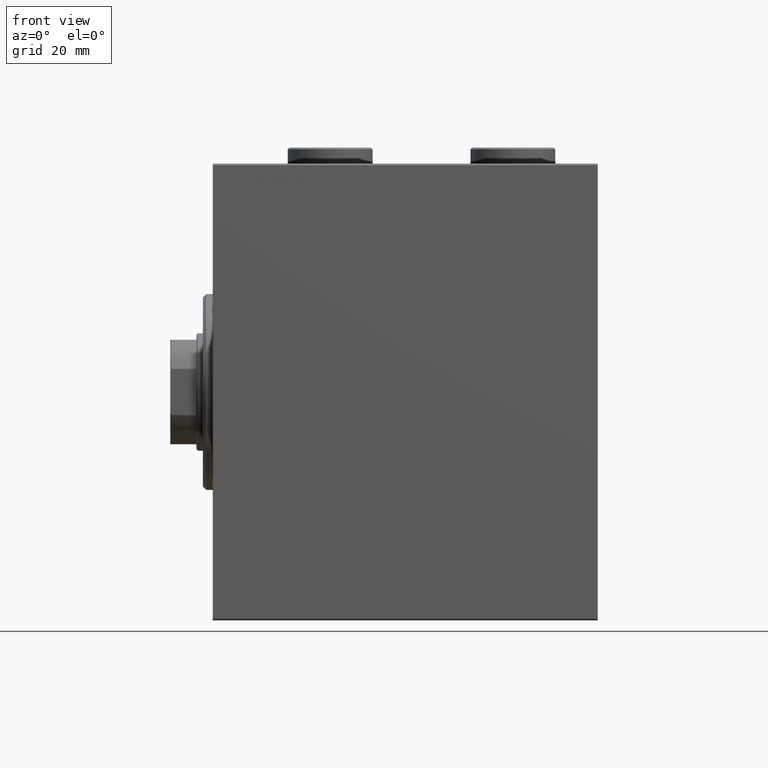
[diagram: clean part render]
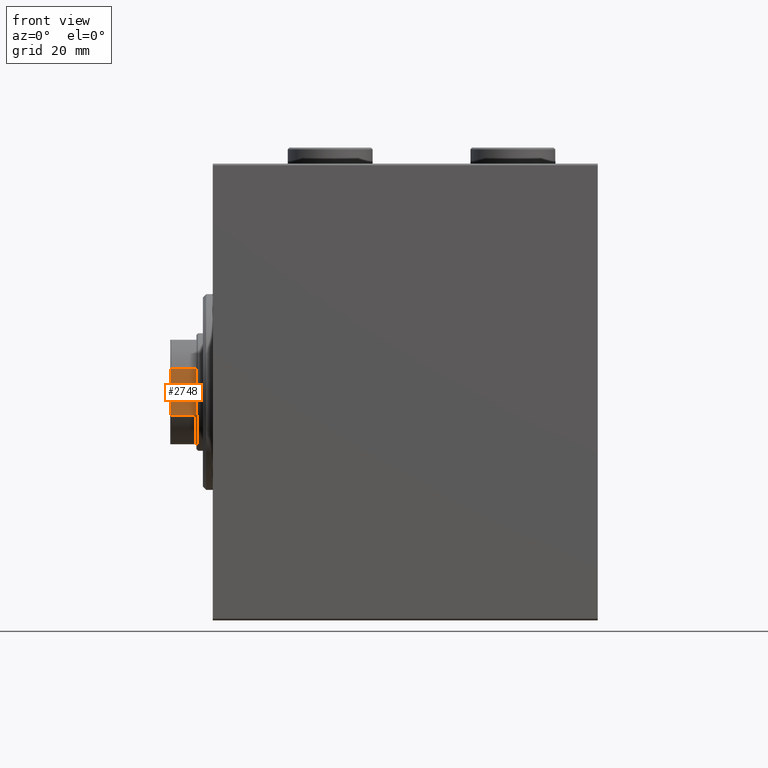
[diagram: same view with one face highlighted and labeled with its STEP entity id]
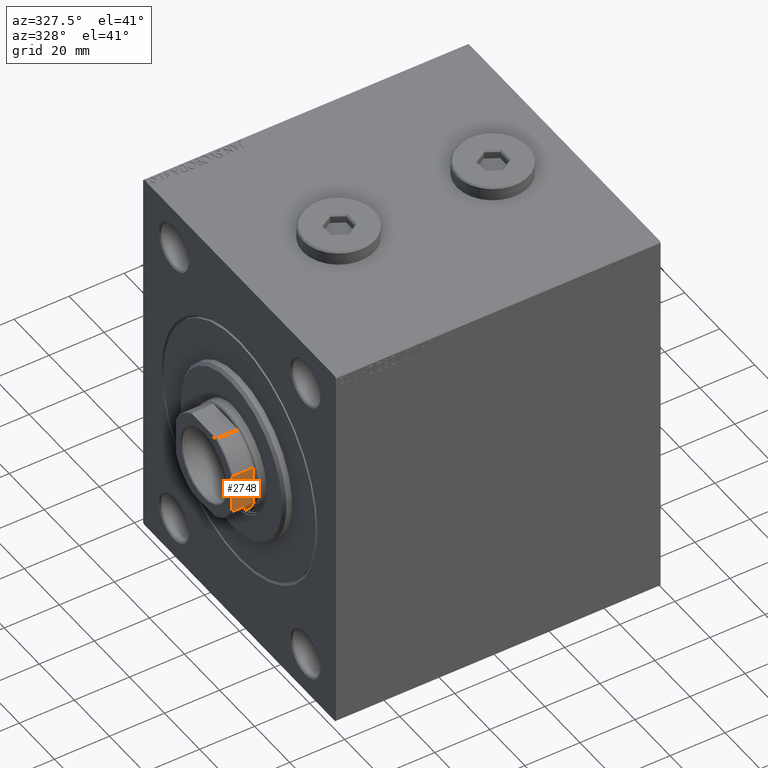
[diagram: same view with one face highlighted and labeled with its STEP entity id]
A machine part, front view. The second image highlights one B-rep face of the part: STEP entity #2748.
A second angle (auxiliary view) of the same face is appended — the face is thin or edge-on in the first view.
In plain terms, the highlighted planar face has unit normal (0, 1, 0).
Its self-contained STEP definition (entity closure, byte-faithful):
#91 = CARTESIAN_POINT ( 'NONE',  ( -7.088723439378916247, -16.00000000000000000, 55.99999999999997868 ) ) ;
#484 = PLANE ( 'NONE',  #8919 ) ;
#818 = VECTOR ( 'NONE', #23744, 1000.000000000000000 ) ;
#1412 = CARTESIAN_POINT ( 'NONE',  ( 7.088723439378916247, -16.00000000000000000, -0.001000000000001000089 ) ) ;
#2120 = EDGE_LOOP ( 'NONE', ( #8819, #24159, #11649, #30242, #22075, #5632 ) ) ;
#2438 = CARTESIAN_POINT ( 'NONE',  ( -6.831413176973287094, -16.00000000000000000, 63.80422864504615887 ) ) ;
#2748 = ADVANCED_FACE ( 'NONE', ( #14966 ), #484, .F. ) ;
#3437 = CARTESIAN_POINT ( 'NONE',  ( -7.088723439378916247, -16.00000000000000000, -0.001000000000001000089 ) ) ;
#4605 = DIRECTION ( 'NONE',  ( 0.000000000000000000, 1.000000000000000000, 0.000000000000000000 ) ) ;
#4867 = DIRECTION ( 'NONE',  ( -0.000000000000000000, -0.000000000000000000, 1.000000000000000000 ) ) ;
#4880 = CARTESIAN_POINT ( 'NONE',  ( 6.831413176973285317, -16.00000000000000000, 63.80422864504615887 ) ) ;
#5632 = ORIENTED_EDGE ( 'NONE', *, *, #22998, .T. ) ;
#6255 = CARTESIAN_POINT ( 'NONE',  ( -15.99999999999999289, -16.00000000000000000, 64.00000000000000000 ) ) ;
#8129 = CARTESIAN_POINT ( 'NONE',  ( 7.088723439378916247, -16.00000000000000000, 55.99999999999997868 ) ) ;
#8139 = EDGE_CURVE ( 'NONE', #19034, #42973, #34968, .T. ) ;
#8678 = VECTOR ( 'NONE', #4867, 1000.000000000000000 ) ;
#8819 = ORIENTED_EDGE ( 'NONE', *, *, #25082, .T. ) ;
#8919 = AXIS2_PLACEMENT_3D ( 'NONE', #29220, #4605, #14512 ) ;
#10888 = CARTESIAN_POINT ( 'NONE',  ( -7.088723439378916247, -16.00000000000000000, 63.70000000000000995 ) ) ;
#11649 = ORIENTED_EDGE ( 'NONE', *, *, #32955, .F. ) ;
#11877 = CARTESIAN_POINT ( 'NONE',  ( 7.088723439378916247, -16.00000000000000000, 63.70000000000000995 ) ) ;
#13375 = VERTEX_POINT ( 'NONE', #11877 ) ;
#14015 = DIRECTION ( 'NONE',  ( -0.000000000000000000, -0.000000000000000000, 1.000000000000000000 ) ) ;
#14511 = VERTEX_POINT ( 'NONE', #35074 ) ;
#14512 = DIRECTION ( 'NONE',  ( 0.000000000000000000, -0.000000000000000000, 1.000000000000000000 ) ) ;
#14966 = FACE_OUTER_BOUND ( 'NONE', #2120, .T. ) ;
#17555 = EDGE_CURVE ( 'NONE', #20575, #42973, #27608, .T. ) ;
#17898 = VECTOR ( 'NONE', #14015, 1000.000000000000000 ) ;
#18911 = CARTESIAN_POINT ( 'NONE',  ( 6.311893535223840779, -16.00000000000000000, 64.00000000000000000 ) ) ;
#19034 = VERTEX_POINT ( 'NONE', #91 ) ;
#19292 = VERTEX_POINT ( 'NONE', #8129 ) ;
#19344 = CARTESIAN_POINT ( 'NONE',  ( -6.311893535223839891, -16.00000000000000000, 64.00000000000000000 ) ) ;
#19930 = CARTESIAN_POINT ( 'NONE',  ( -7.088723439378916247, -16.00000000000000000, 63.70000000000000995 ) ) ;
#20575 = VERTEX_POINT ( 'NONE', #19344 ) ;
#21023 = LINE ( 'NONE', #35739, #25534 ) ;
#22075 = ORIENTED_EDGE ( 'NONE', *, *, #8139, .F. ) ;
#22998 = EDGE_CURVE ( 'NONE', #19034, #19292, #21023, .T. ) ;
#23057 = EDGE_CURVE ( 'NONE', #13375, #14511, #38798, .T. ) ;
#23744 = DIRECTION ( 'NONE',  ( 1.000000000000000000, 0.000000000000000000, 0.000000000000000000 ) ) ;
#24159 = ORIENTED_EDGE ( 'NONE', *, *, #23057, .T. ) ;
#25082 = EDGE_CURVE ( 'NONE', #19292, #13375, #44597, .T. ) ;
#25534 = VECTOR ( 'NONE', #38502, 1000.000000000000000 ) ;
#27608 = B_SPLINE_CURVE_WITH_KNOTS ( 'NONE', 3,
 ( #33736, #41316, #2438, #19930 ),
 .UNSPECIFIED., .F., .F.,
 ( 4, 4 ),
 ( 8.673617379884035472E-19, 0.0008327452791757994181 ),
 .UNSPECIFIED. ) ;
#29220 = CARTESIAN_POINT ( 'NONE',  ( -15.99999999999999289, -16.00000000000000000, 64.00000000000000000 ) ) ;
#30242 = ORIENTED_EDGE ( 'NONE', *, *, #17555, .T. ) ;
#32955 = EDGE_CURVE ( 'NONE', #20575, #14511, #41210, .T. ) ;
#33170 = CARTESIAN_POINT ( 'NONE',  ( 7.088723439378916247, -16.00000000000000000, 63.70000000000000995 ) ) ;
#33736 = CARTESIAN_POINT ( 'NONE',  ( -6.311893535223839891, -16.00000000000000000, 64.00000000000000000 ) ) ;
#34968 = LINE ( 'NONE', #3437, #17898 ) ;
#35074 = CARTESIAN_POINT ( 'NONE',  ( 6.311893535223840779, -16.00000000000000000, 64.00000000000000000 ) ) ;
#35739 = CARTESIAN_POINT ( 'NONE',  ( -15.99999999999999289, -16.00000000000000000, 55.99999999999999289 ) ) ;
#38502 = DIRECTION ( 'NONE',  ( 1.000000000000000000, 0.000000000000000000, 0.000000000000000000 ) ) ;
#38798 = B_SPLINE_CURVE_WITH_KNOTS ( 'NONE', 3,
 ( #33170, #4880, #43517, #18911 ),
 .UNSPECIFIED., .F., .F.,
 ( 4, 4 ),
 ( 0.000000000000000000, 0.0008327452791757995266 ),
 .UNSPECIFIED. ) ;
#41210 = LINE ( 'NONE', #6255, #818 ) ;
#41316 = CARTESIAN_POINT ( 'NONE',  ( -6.572519770966309238, -16.00000000000000000, 63.90435784578531297 ) ) ;
#42973 = VERTEX_POINT ( 'NONE', #10888 ) ;
#43517 = CARTESIAN_POINT ( 'NONE',  ( 6.572519770966311015, -16.00000000000000000, 63.90435784578531297 ) ) ;
#44597 = LINE ( 'NONE', #1412, #8678 ) ;